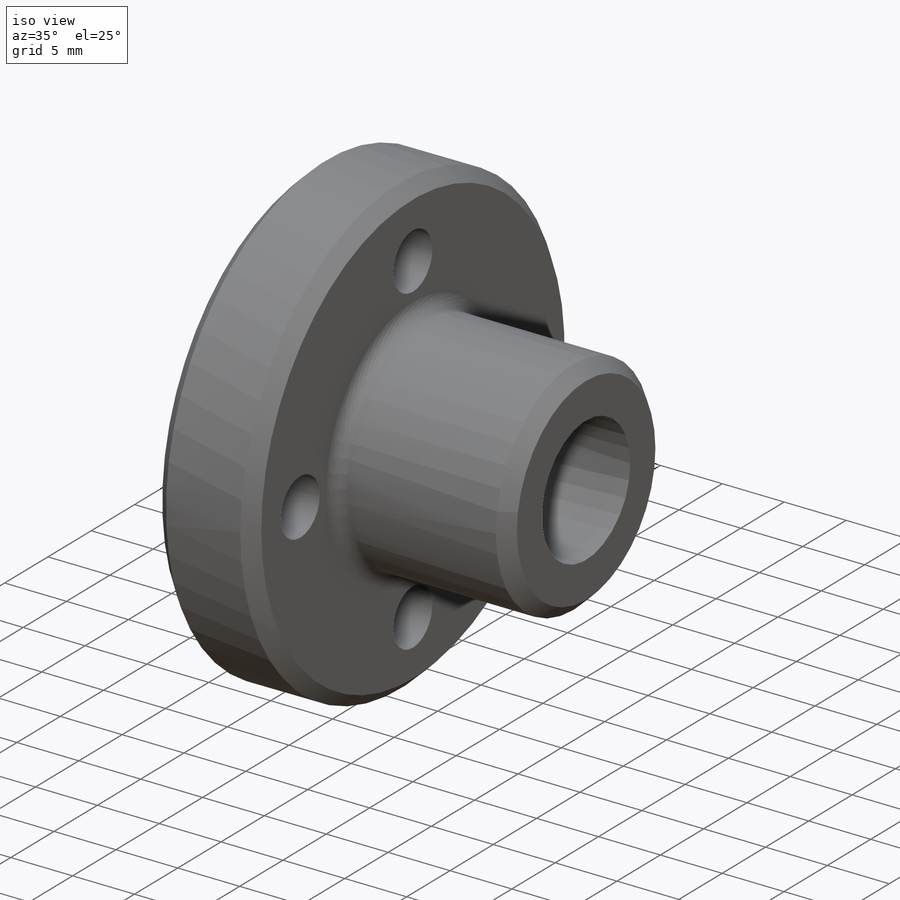
[diagram: iso view]
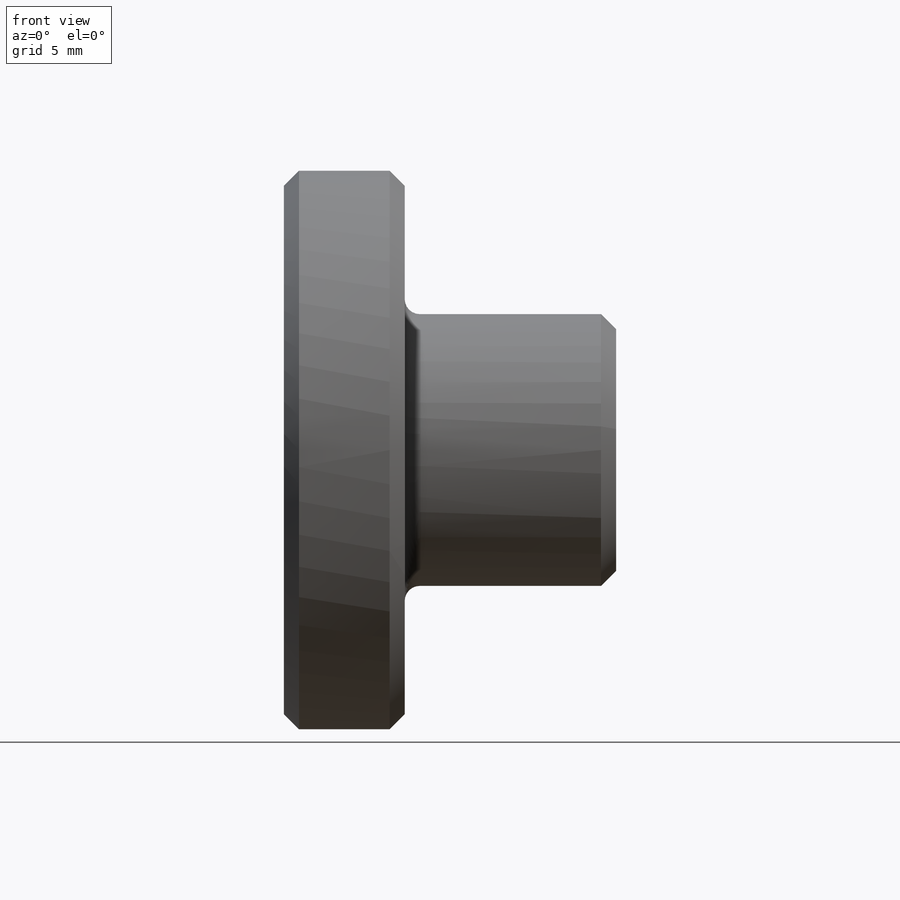
[diagram: front view]
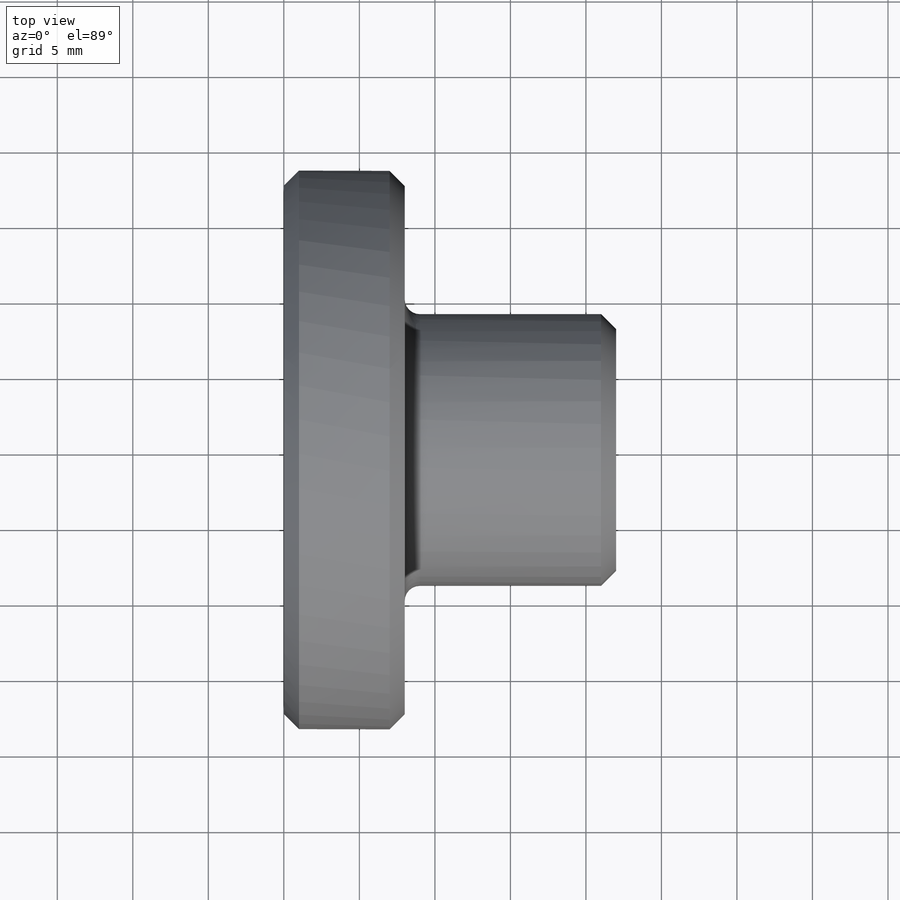
[diagram: top view]
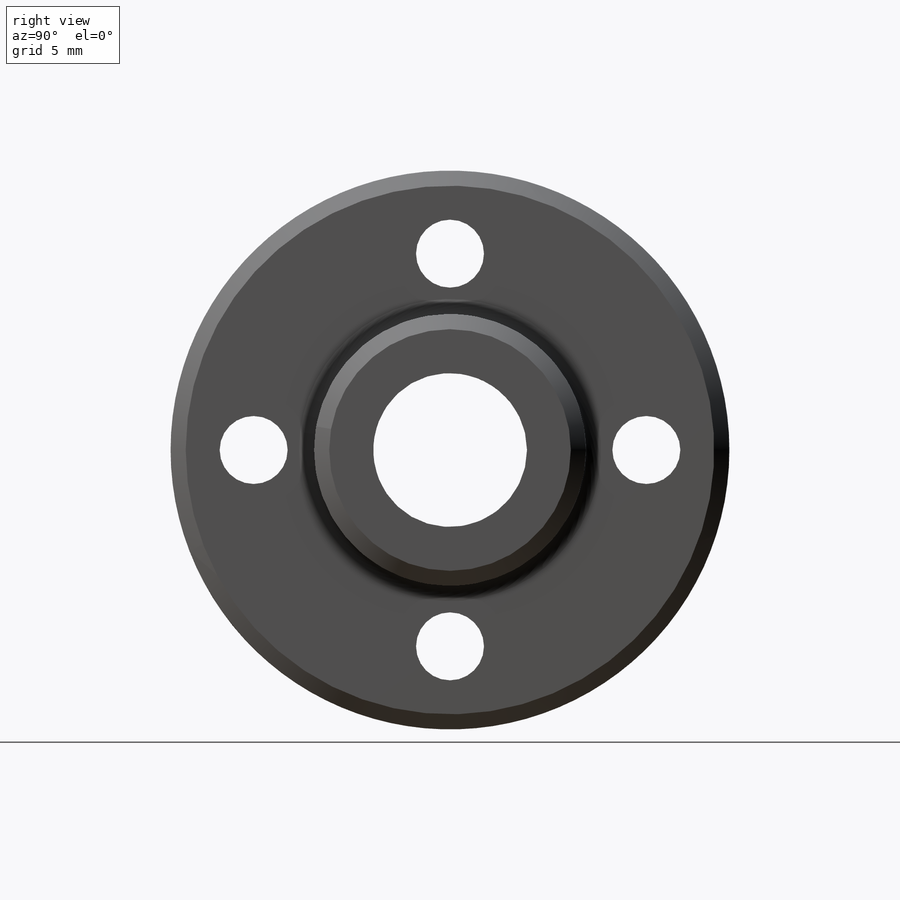
[diagram: right view]
SOLIDWORKS PART (.sldprt)
format: sldprt  version: not decoded by parser v0  size: 277,504 bytes
history: native  units: mm
features: sketch x5, plane x4, thread x2, material x1, revolve x1, hole x1, pattern_circular x1, fillet x1, chamfer x1 (+9 scaffold rows collapsed)
feature tree (26):
  scaffold x9  (default folders/planes/origin — collapsed)
  material  "Nylon 6/10"
  plane  "Piano frontale"
  plane  "Piano superiore"
  plane  "Piano destro"
  plane  "Piano1"
  sketch  "Schizzo1"  dims[D1=37.0mm D2=18.0mm D3=8.0mm D4=22.0mm D5=9.5mm]
  revolve  "Rivoluzione1"  Angle=360deg
  hole  "Foro lamato per Vite M4 a testa cilindrica piana-1"  Diameter=4.5mm Depth=22mm
  sketch  "Schizzo8"  dims[D1=13.0mm]
  sketch  "Schizzo7"  dims[hole-wizard template sketch: 42 standard entries collapsed; hole parameters kept: c12.Thru Hole Depth=22.0mm c12.C'Bore Dia.=8.0mm c12.C'Bore Depth=2.6mm]
  pattern_circular  "RipetizioneCircolare1"  Count=4 Angle=360deg
  fillet  "Raccordo1"  Radius=1mm
  chamfer  "Smusso1"  Distance=1mm Angle=45deg
  sketch  "Schizzo10"
  sketch  "Schizzo9"  dims[hole-wizard template sketch: 46 standard entries collapsed; hole parameters kept: c15.Tap Drill Dia.=10.2mm c15.Tap Drill Depth=32.75mm c15.D3=~14.816244mm c15.Drill Angle=118.0deg]
  thread  "Filettatura del foro1"  Diameter=22mm  [1 undecoded]
  thread  "Smusso2"  Diameter=1mm  [1 undecoded]
decode coverage: 11 of 12 modeling features carry decoded parameters
note: ~ marks probable driven/reference dimensions
note: 2 parameter values undecoded
note: suppression state not decoded; provenance and decode notes live in map.json
